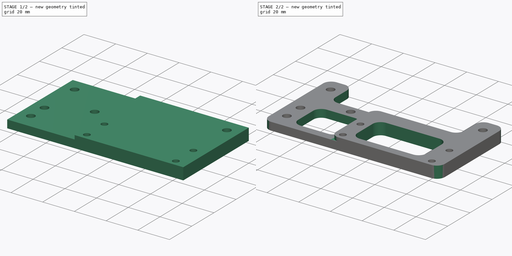
[diagram: build sequence overview — one tinted view per stage of 2, left to right]
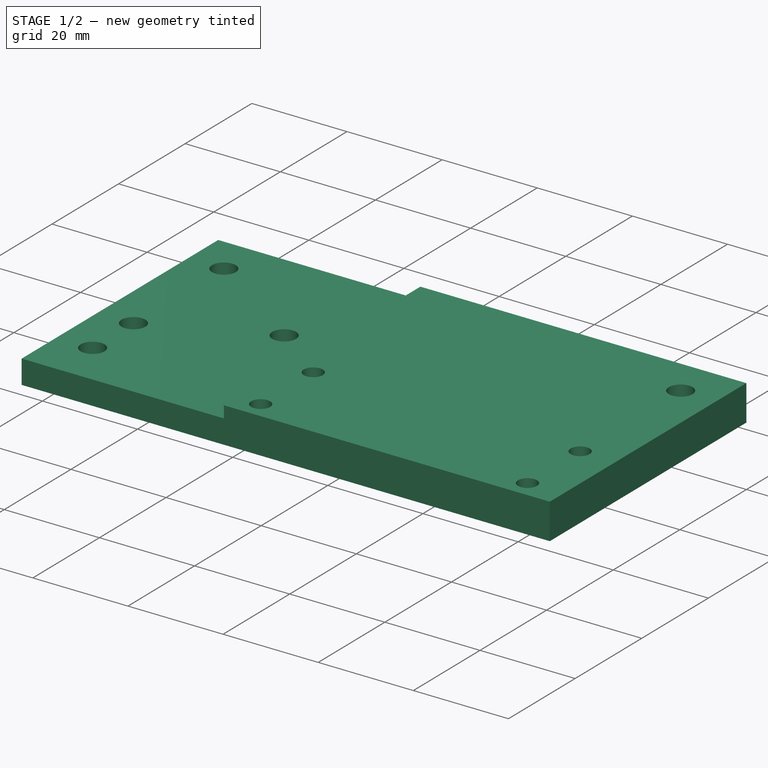
[diagram: stage 1 of 2 — iso view after this stage's code; geometry added in this stage tinted green]
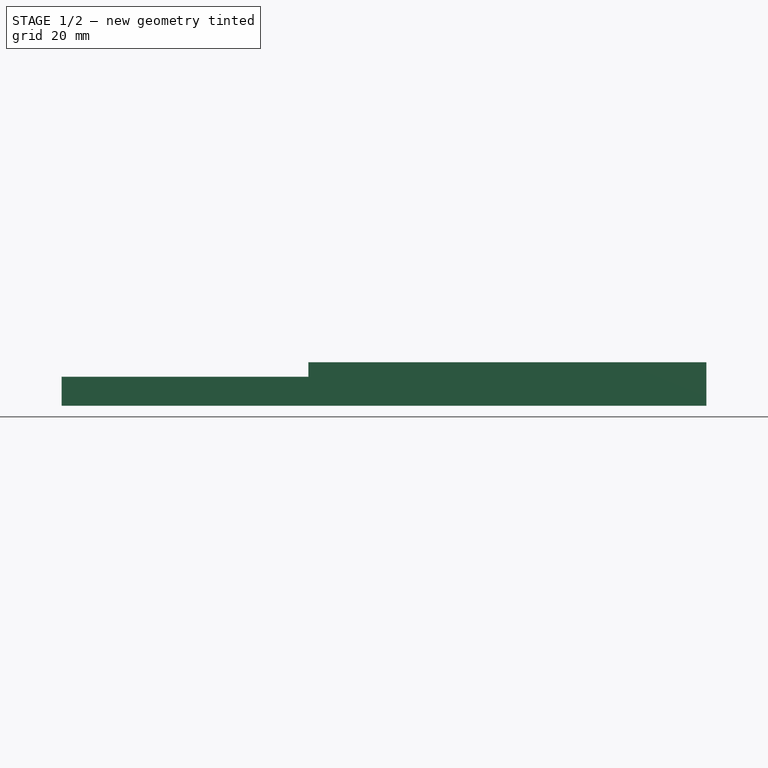
[diagram: stage 1 of 2 — front view after this stage's code; geometry added in this stage tinted green]
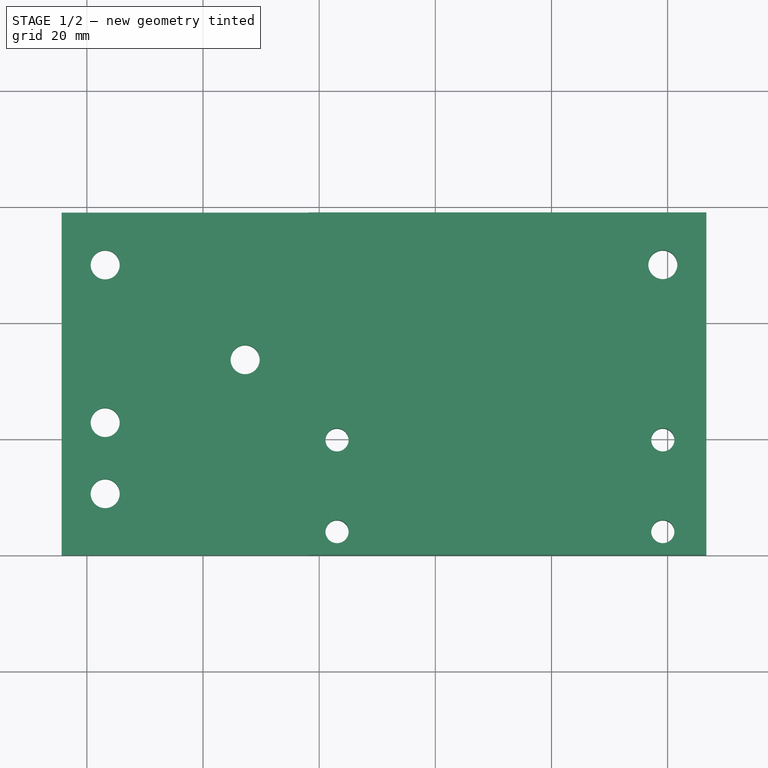
[diagram: stage 1 of 2 — top view after this stage's code; geometry added in this stage tinted green]
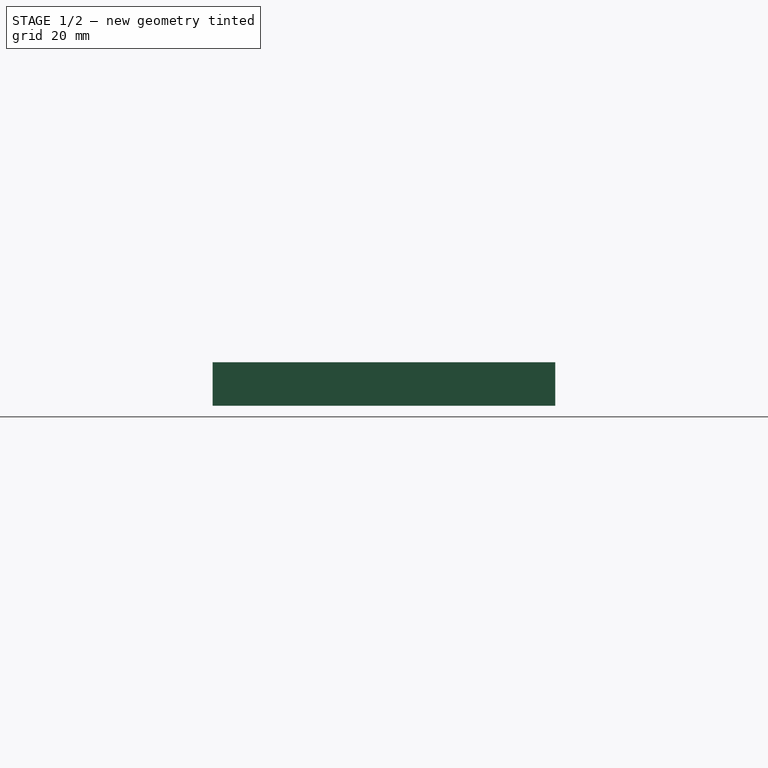
[diagram: stage 1 of 2 — right view after this stage's code; geometry added in this stage tinted green]
FCSTD DOCUMENT  (FreeCAD 0.16R5231 (Git))
Label: LaserMount
License: All rights reserved
LicenseURL: http://de.wikipedia.org/wiki/Alle_Rechte_vorbehalten
objects: Sketcher::SketchObject×3, Part::Part2DObjectPython×3, PartDesign::Pocket×2, PartDesign::Pad×1, PartDesign::Fillet×1
note: 13 computed .brp shape members not serialized (recipe doc carries the construction recipe); baked Part::Feature solids carry a one-line shape summary decoded from their .brp

FEATURE [Sketcher::SketchObject] Sketch
  sketch-geometry (33):
    g0: Circle CenterX=3.15 CenterY=22.85 CenterZ=0 NormalX=0 NormalY=0 NormalZ=1 Radius=2.5
    g1: Circle CenterX=3.15 CenterY=10.6 CenterZ=0 NormalX=0 NormalY=0 NormalZ=1 Radius=2.5
    g2: Circle CenterX=27.25 CenterY=33.675 CenterZ=0 NormalX=0 NormalY=0 NormalZ=1 Radius=2.5
    g3: LineSegment [constr] StartX=3.15 StartY=22.85 StartZ=0 EndX=3.15 EndY=10.6 EndZ=0
    g4: LineSegment [constr] StartX=0 StartY=40 StartZ=0 EndX=13 EndY=40 EndZ=0
    g5: LineSegment [constr] StartX=13 StartY=40 StartZ=0 EndX=13 EndY=0 EndZ=0
    g6: LineSegment [constr] StartX=13 StartY=0 StartZ=0 EndX=0 EndY=0 EndZ=0
    g7: LineSegment [constr] StartX=0 StartY=0 StartZ=0 EndX=0 EndY=40 EndZ=0
    g8: LineSegment [constr] StartX=0 StartY=40 StartZ=0 EndX=35 EndY=40 EndZ=0
    g9: LineSegment [constr] StartX=35 StartY=40 StartZ=0 EndX=35 EndY=27 EndZ=0
    g10: LineSegment [constr] StartX=35 StartY=27 StartZ=0 EndX=0 EndY=27 EndZ=0
    g11: LineSegment [constr] StartX=0 StartY=27 StartZ=0 EndX=0 EndY=40 EndZ=0
    g12: LineSegment [constr] StartX=3.15 StartY=33.675 StartZ=0 EndX=27.25 EndY=33.675 EndZ=0
    g13: Circle CenterX=43.075 CenterY=19.825 CenterZ=0 NormalX=0 NormalY=0 NormalZ=1 Radius=2
    g14: Circle CenterX=99.175 CenterY=19.825 CenterZ=0 NormalX=0 NormalY=0 NormalZ=1 Radius=2
    g15: Circle CenterX=43.075 CenterY=4.025 CenterZ=0 NormalX=0 NormalY=0 NormalZ=1 Radius=2
    g16: Circle CenterX=99.175 CenterY=4.025 CenterZ=0 NormalX=0 NormalY=0 NormalZ=1 Radius=2
    g17: LineSegment [constr] StartX=43.075 StartY=19.825 StartZ=0 EndX=99.175 EndY=19.825 EndZ=0
    g18: LineSegment [constr] StartX=99.175 StartY=19.825 StartZ=0 EndX=99.175 EndY=4.025 EndZ=0
    g19: LineSegment [constr] StartX=99.175 StartY=4.025 StartZ=0 EndX=43.075 EndY=4.025 EndZ=0
    g20: LineSegment [constr] StartX=43.075 StartY=4.025 StartZ=0 EndX=43.075 EndY=19.825 EndZ=0
    g21: LineSegment [constr] StartX=23.075 StartY=11.925 StartZ=0 EndX=23.075 EndY=0 EndZ=0
    g22: LineSegment [constr] StartX=23.075 StartY=0 StartZ=0 EndX=35 EndY=0 EndZ=0
    g23: LineSegment [constr] StartX=23.075 StartY=11.925 StartZ=0 EndX=43.075 EndY=11.925 EndZ=0
    g24: LineSegment StartX=-4.35 StartY=59 StartZ=0 EndX=106.675 EndY=59 EndZ=0
    g25: LineSegment StartX=106.675 StartY=59 StartZ=0 EndX=106.675 EndY=0 EndZ=0
    g26: LineSegment StartX=106.675 StartY=0 StartZ=0 EndX=-4.35 EndY=0 EndZ=0
    g27: LineSegment StartX=-4.35 StartY=0 StartZ=0 EndX=-4.35 EndY=59 EndZ=0
    g28: Circle CenterX=3.15 CenterY=50 CenterZ=0 NormalX=0 NormalY=0 NormalZ=1 Radius=2.5
    g29: Circle CenterX=99.175 CenterY=50 CenterZ=0 NormalX=0 NormalY=0 NormalZ=1 Radius=2.5
    g30: LineSegment [constr] StartX=3.15 StartY=50 StartZ=0 EndX=99.175 EndY=50 EndZ=0
    g31: LineSegment [constr] StartX=3.15 StartY=50 StartZ=0 EndX=3.15 EndY=22.85 EndZ=0
    g32: LineSegment [constr] StartX=99.175 StartY=50 StartZ=0 EndX=99.175 EndY=19.825 EndZ=0
  constraints (91):
    c: Radius(g0) = 2.5
    c: Equal(g0,g1)
    c: Equal(g1,g2)
    c: Coincident(g3,g0)
    c: Coincident(g3,g1)
    c: Vertical(g3)
    c: DistanceY(g3) = -12.25
    c: Coincident(g4,g5)
    c: Coincident(g5,g6)
    c: Coincident(g6,g7)
    c: Coincident(g7,g4)
    c: Horizontal(g4)
    c: Horizontal(g6)
    c: Vertical(g5)
    c: Vertical(g7)
    c: DistanceX(g4) = 13
    c: DistanceY(g7) = 40
    c: Coincident(g6,g-1)
    c: Coincident(g8,g9)
    c: Coincident(g9,g10)
    c: Coincident(g10,g11)
    c: Coincident(g11,g8)
    c: Horizontal(g8)
    c: Horizontal(g10)
    c: Vertical(g9)
    c: Vertical(g11)
    c: DistanceY(g11) = 13
    c: DistanceX(g8) = 35
    c: Coincident(g8,g4)
    c: DistanceX(g-1,g1) = 3.15
    c: DistanceY(g-1,g1) = 10.6
    c: Horizontal(g12)
    c: DistanceX(g12) = 24.1
    c: Coincident(g2,g12)
    c: PointOnObject(g12,g3)
    c: DistanceY(g2,g9) = -6.675
    c: Radius(g13) = 2
    c: Equal(g13,g14)
    c: Equal(g14,g15)
    c: Equal(g15,g16)
    c: Coincident(g17,g18)
    c: Coincident(g18,g19)
    c: Coincident(g19,g20)
    c: Coincident(g20,g17)
    c: Horizontal(g17)
    c: Horizontal(g19)
    c: Vertical(g18)
    c: Vertical(g20)
    c: Coincident(g17,g13)
    c: Coincident(g14,g17)
    c: Coincident(g15,g19)
    c: Coincident(g18,g16)
    c: DistanceX(g17) = 56.1
    c: DistanceY(g18) = -15.8
    c: Vertical(g21)
    c: Horizontal(g22)
    c: DistanceX(g22) = 11.925
    c: PointOnObject(g22,g9)
    c: Equal(g21,g22)
    c: PointOnObject(g21,g6)
    c: PointOnObject(g22,g6)
    c: Coincident(g21,g22)
    c: Coincident(g23,g21)
    c: PointOnObject(g23,g20)
    c: Horizontal(g23)
    c: Symmetric(g20,g20,g23)
    c: DistanceX(g23) = 20
    c: Coincident(g24,g25)
    c: Coincident(g25,g26)
    c: Coincident(g26,g27)
    c: Coincident(g27,g24)
    c: Horizontal(g24)
    c: Horizontal(g26)
    c: Vertical(g25)
    c: Vertical(g27)
    c: DistanceY(g-1,g26) = 0
    c: DistanceY(g4,g24) = 19
    c: DistanceX(g16,g25) = 7.5
    c: Coincident(g30,g28)
    c: Coincident(g30,g29)
    c: Horizontal(g30)
    c: DistanceY(g29,g24) = 9
    c: Radius(g29) = 2.5
    c: Equal(g29,g28)
    c: Coincident(g31,g28)
    c: Coincident(g31,g0)
    c: Vertical(g31)
    c: Coincident(g32,g29)
    c: Coincident(g32,g14)
    c: Vertical(g32)
    c: DistanceX(g26,g1) = 7.5
FEATURE [PartDesign::Pad] Pad
  Length = 7.5
  Length2 = 100
  Sketch = -> Sketch
  Type = 0
FEATURE [Part::Part2DObjectPython] Rectangle  # Draft 2D object (typed FeaturePython)
  ChamferSize = 0
  FilletRadius = 0
  Height = 17.475
  Length = 26.3561
  MakeFace = true
  Placement = pos=(3.0062,1.57385e-06,9.9) rot=(1,0,0;1.5708rad)
FEATURE [Part::Part2DObjectPython] Rectangle001  # Draft 2D object (typed FeaturePython)
  ChamferSize = 0
  FilletRadius = 0
  Height = 15.75
  Length = 21.9634
  MakeFace = true
  Placement = pos=(49.1284,1.11565e-06,11.5) rot=(1,0,0;1.5708rad)
FEATURE [Sketcher::SketchObject] Sketch001
  ExternalGeometry = -> [Pad]
  Placement = pos=(0,0,7.5) rot=(0,0,1;0rad)
  Support = -> Pad [Face15]
  sketch-geometry (4):
    g0: LineSegment StartX=-4.35 StartY=59 StartZ=0 EndX=38.15 EndY=59 EndZ=0
    g1: LineSegment StartX=38.15 StartY=59 StartZ=0 EndX=38.15 EndY=0 EndZ=0
    g2: LineSegment StartX=38.15 StartY=0 StartZ=0 EndX=-4.35 EndY=0 EndZ=0
    g3: LineSegment StartX=-4.35 StartY=0 StartZ=0 EndX=-4.35 EndY=59 EndZ=0
  constraints (11):
    c: Coincident(g0,g1)
    c: Coincident(g1,g2)
    c: Coincident(g2,g3)
    c: Coincident(g3,g0)
    c: Horizontal(g0)
    c: Horizontal(g2)
    c: Vertical(g1)
    c: Vertical(g3)
    c: Coincident(g0,g-3)
    c: PointOnObject(g1,g-4)
    c: DistanceX(g0) = 42.5
FEATURE [Part::Part2DObjectPython] Line  # Draft 2D object (typed FeaturePython)
  ChamferSize = 0
  Closed = false
  End = (31.3623,1.41739e-06,24.75)
  FilletRadius = 0
  Length = 2.625
  MakeFace = true
  Placement = pos=(-6,0,-2.5) rot=(0,0,1;0rad)
  Points = (2) [(37.3623,1.57385e-06,29.875),(37.3623,1.41739e-06,27.25)]
  Start = (31.3623,1.57385e-06,27.375)
FEATURE [PartDesign::Pocket] Pocket
  Length = 2.5
  Sketch = -> Sketch001
  Type = 0
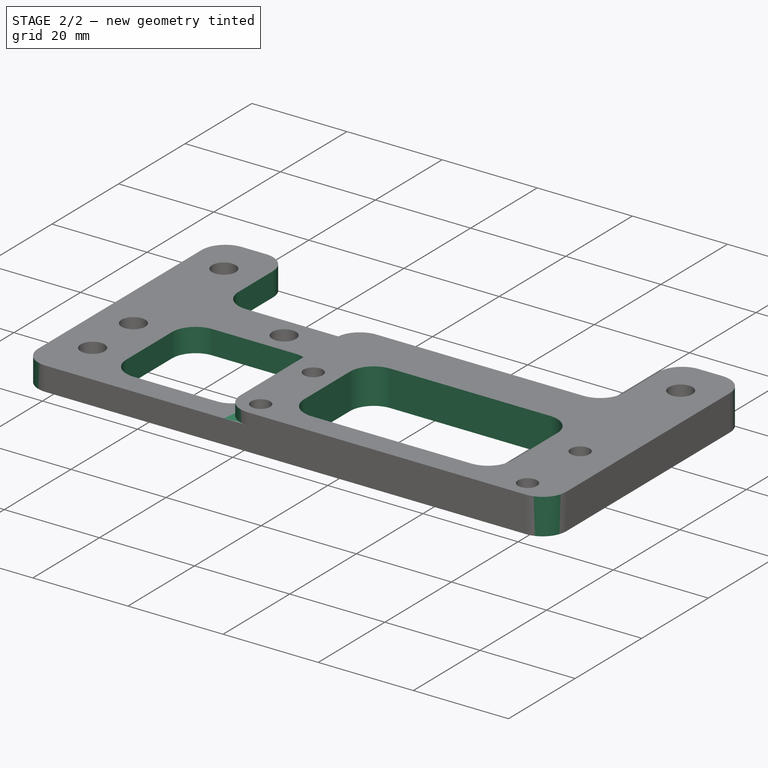
[diagram: stage 2 of 2 — iso view after this stage's code; geometry added in this stage tinted green]
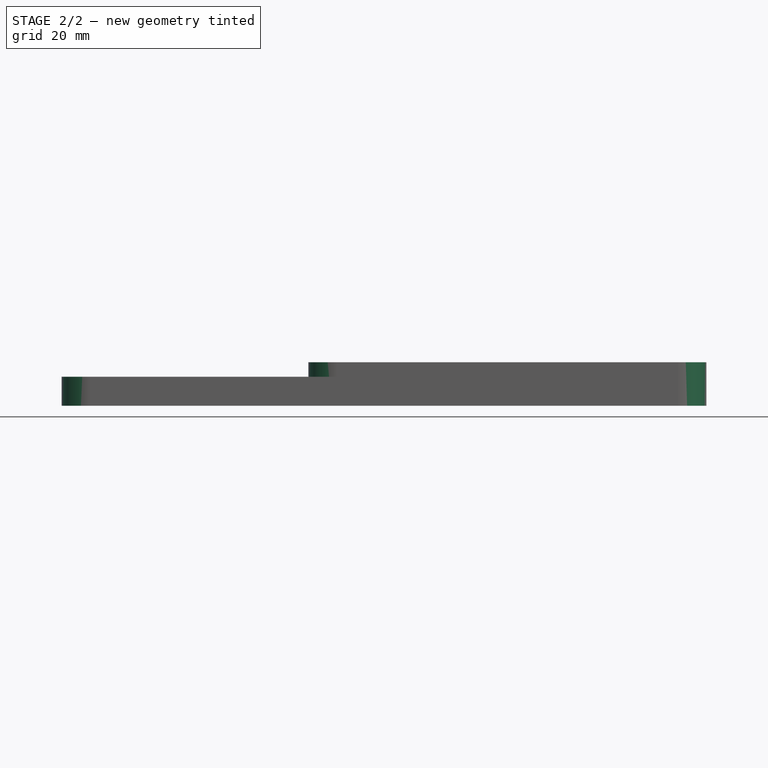
[diagram: stage 2 of 2 — front view after this stage's code; geometry added in this stage tinted green]
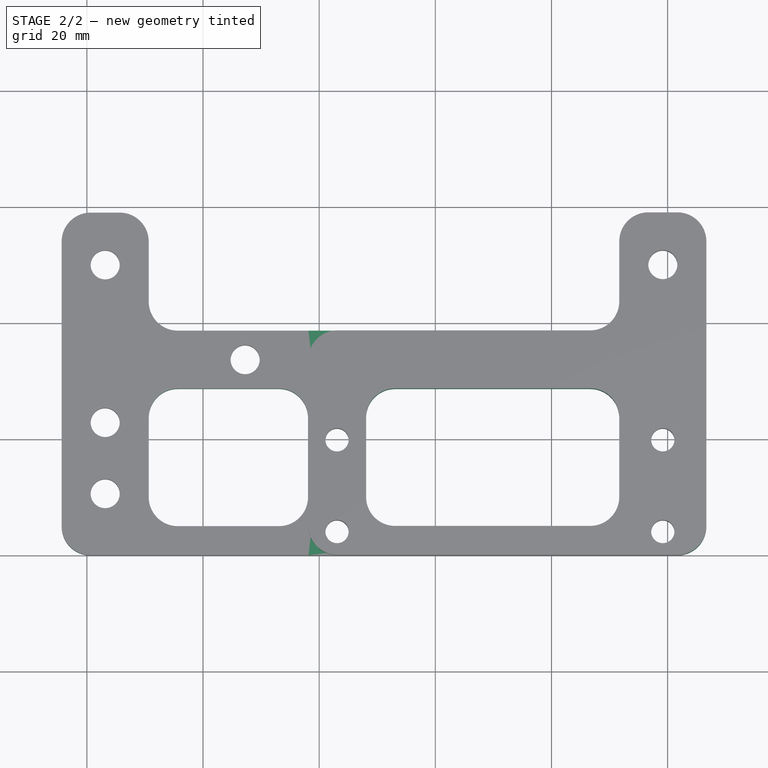
[diagram: stage 2 of 2 — top view after this stage's code; geometry added in this stage tinted green]
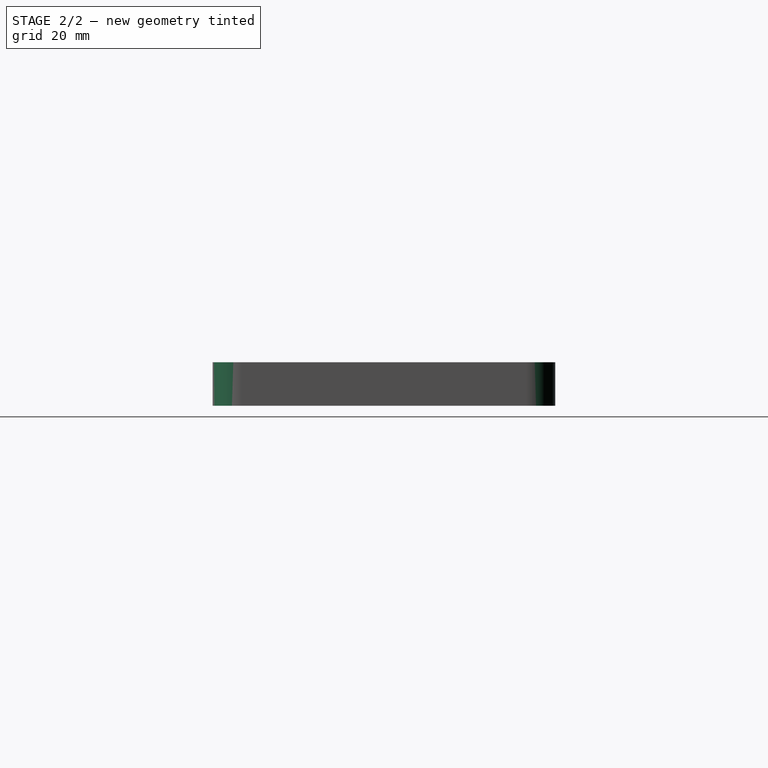
[diagram: stage 2 of 2 — right view after this stage's code; geometry added in this stage tinted green]
FEATURE [Sketcher::SketchObject] Sketch002
  ExternalGeometry = -> [Pocket]
  Placement = pos=(0,0,7.5) rot=(0,0,1;0rad)
  Support = -> Pocket [Face4]
  sketch-geometry (16):
    g0: LineSegment StartX=10.65 StartY=59 StartZ=0 EndX=91.675 EndY=59 EndZ=0
    g1: LineSegment StartX=91.675 StartY=59 StartZ=0 EndX=91.675 EndY=38.675 EndZ=0
    g2: LineSegment StartX=91.675 StartY=38.675 StartZ=0 EndX=10.65 EndY=38.675 EndZ=0
    g3: LineSegment StartX=10.65 StartY=38.675 StartZ=0 EndX=10.65 EndY=59 EndZ=0
    g4: LineSegment StartX=48.075 StartY=28.675 StartZ=0 EndX=91.675 EndY=28.675 EndZ=0
    g5: LineSegment StartX=91.675 StartY=28.675 StartZ=0 EndX=91.675 EndY=5 EndZ=0
    g6: LineSegment StartX=91.675 StartY=5 StartZ=0 EndX=48.075 EndY=5 EndZ=0
    g7: LineSegment StartX=48.075 StartY=5 StartZ=0 EndX=48.075 EndY=28.675 EndZ=0
    g8: LineSegment StartX=10.65 StartY=28.675 StartZ=0 EndX=38.075 EndY=28.675 EndZ=0
    g9: LineSegment StartX=38.075 StartY=28.675 StartZ=0 EndX=38.075 EndY=5 EndZ=0
    g10: LineSegment StartX=38.075 StartY=5 StartZ=0 EndX=10.65 EndY=5 EndZ=0
    g11: LineSegment StartX=10.65 StartY=5 StartZ=0 EndX=10.65 EndY=28.675 EndZ=0
    g12: LineSegment [constr] StartX=38.075 StartY=28.675 StartZ=0 EndX=48.075 EndY=28.675 EndZ=0
    g13: LineSegment [constr] StartX=10.65 StartY=38.675 StartZ=0 EndX=10.65 EndY=28.675 EndZ=0
    g14: LineSegment [constr] StartX=91.675 StartY=38.675 StartZ=0 EndX=91.675 EndY=28.675 EndZ=0
    g15: LineSegment [constr] StartX=38.075 StartY=5 StartZ=0 EndX=48.075 EndY=5 EndZ=0
  constraints (44):
    c: Coincident(g0,g1)
    c: Coincident(g1,g2)
    c: Coincident(g2,g3)
    c: Coincident(g3,g0)
    c: Horizontal(g0)
    c: Horizontal(g2)
    c: Vertical(g1)
    c: Vertical(g3)
    c: Coincident(g4,g5)
    c: Coincident(g5,g6)
    c: Coincident(g6,g7)
    c: Coincident(g7,g4)
    c: Horizontal(g4)
    c: Horizontal(g6)
    c: Vertical(g5)
    c: Vertical(g7)
    c: Coincident(g8,g9)
    c: Coincident(g9,g10)
    c: Coincident(g10,g11)
    c: Coincident(g11,g8)
    c: Horizontal(g8)
    c: Horizontal(g10)
    c: Vertical(g9)
    c: Vertical(g11)
    c: Coincident(g12,g8)
    c: Coincident(g12,g4)
    c: Horizontal(g12)
    c: Coincident(g13,g2)
    c: Coincident(g13,g8)
    c: Vertical(g13)
    c: Coincident(g14,g1)
    c: Coincident(g14,g4)
    c: Vertical(g14)
    c: Coincident(g15,g9)
    c: Coincident(g15,g6)
    c: Horizontal(g15)
    c: DistanceX(g12) = 10
    c: DistanceY(g14) = -10
    c: DistanceX(g0,g-4) = 15
    c: DistanceX(g0,g-5) = -15
    c: PointOnObject(g0,g-3)
    c: DistanceY(g5,g-6) = -5
    c: DistanceY(g2,g-7) = -5
    c: DistanceX(g-8,g4) = 5
FEATURE [PartDesign::Pocket] Pocket001
  Length = 5
  Sketch = -> Sketch002
  Type = 1
FEATURE [PartDesign::Fillet] Fillet
  Base = -> Pocket001 [Edge49,Edge48,Edge46,Edge65,Edge63,Edge51,Edge61,Edge60,Edge70,Edge69,Edge53,Edge45,Edge72,Edge71,Edge30,Edge2,Edge4,Edge43]
  Radius = 5
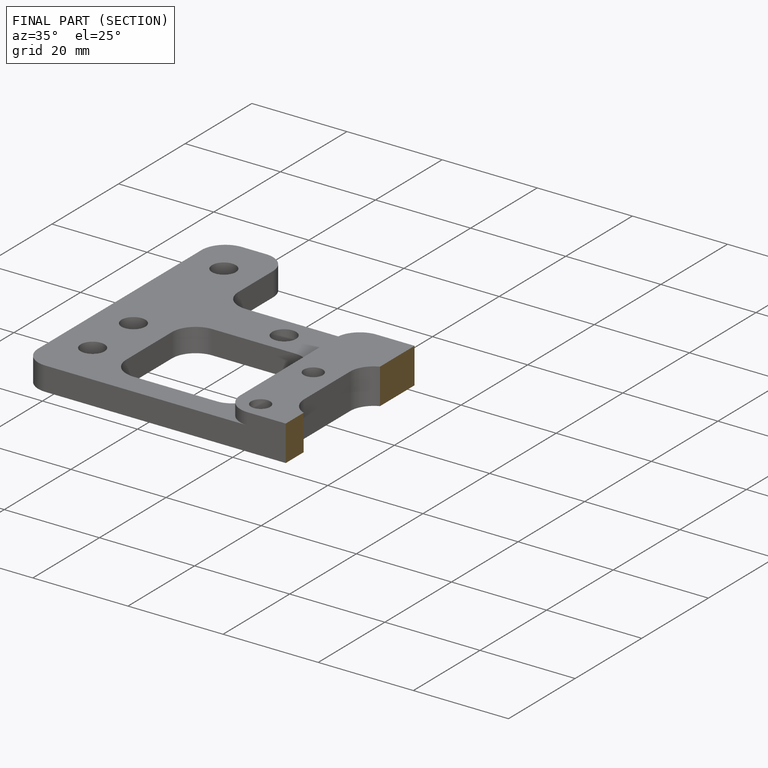
[diagram: finished part — half-section view (interior)]
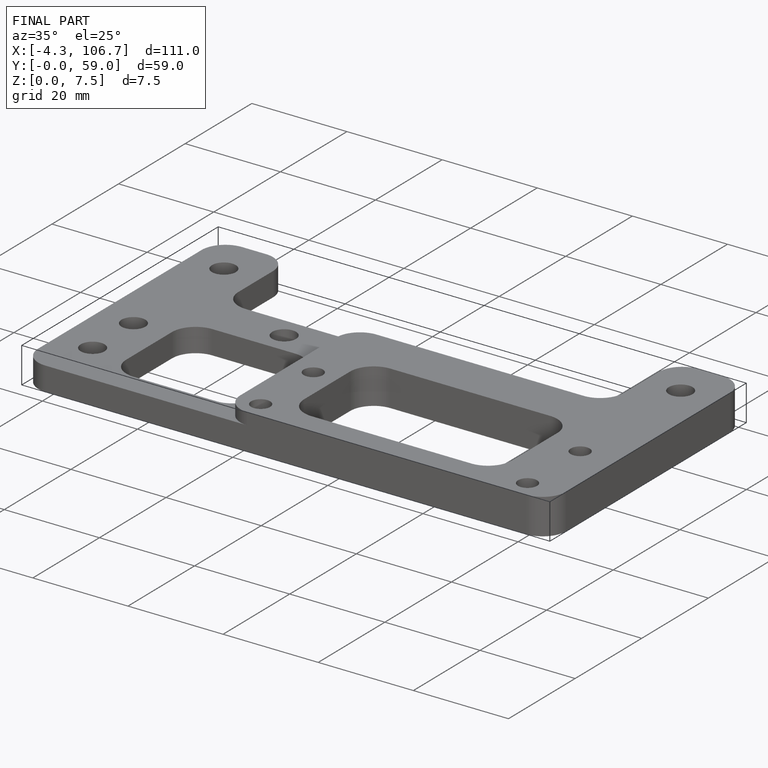
[diagram: finished part — iso view with bounding-box wireframe]
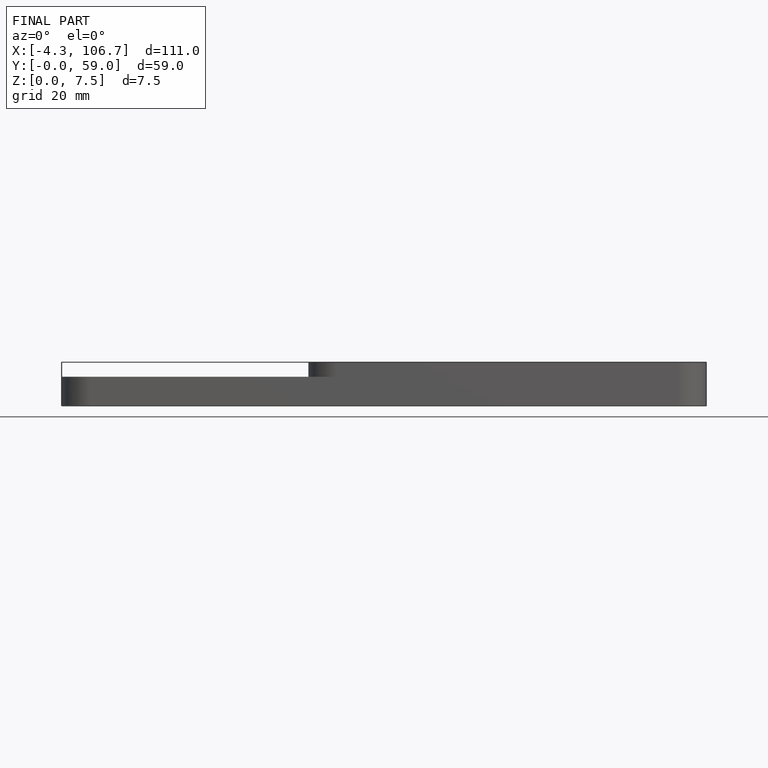
[diagram: finished part — front view with bounding-box wireframe]
